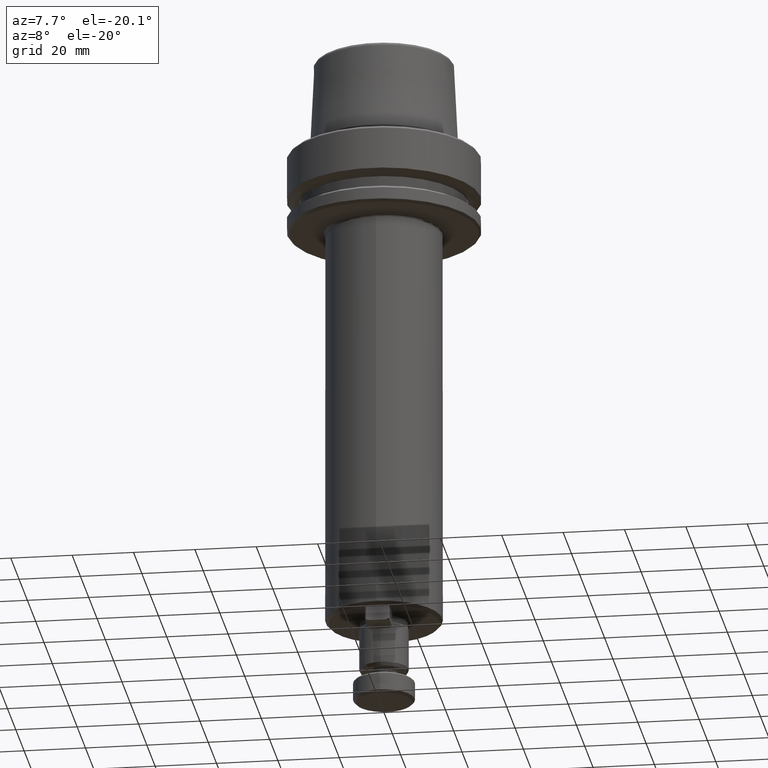
[diagram: clean part render]
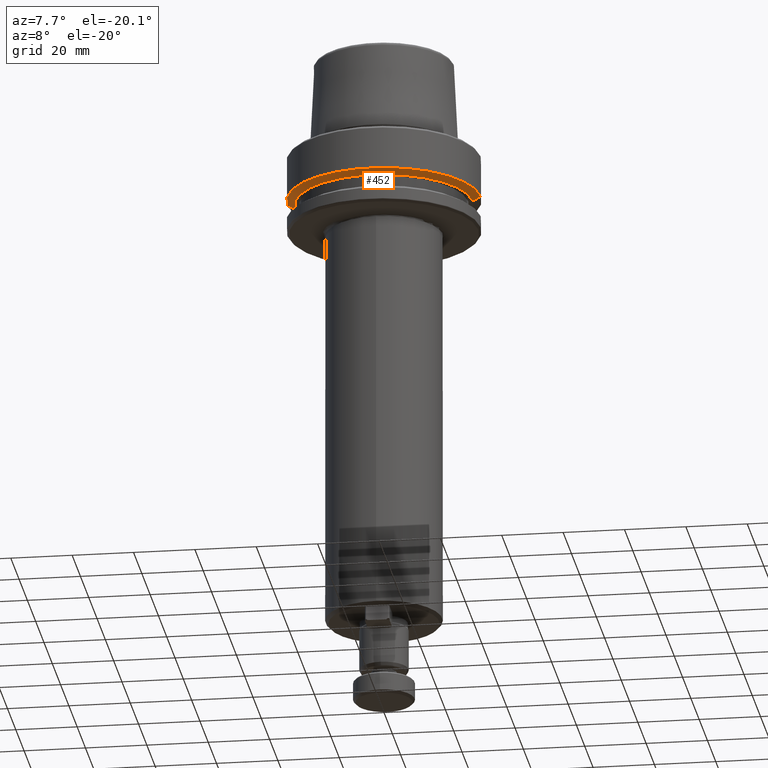
[diagram: same view with one face highlighted and labeled with its STEP entity id]
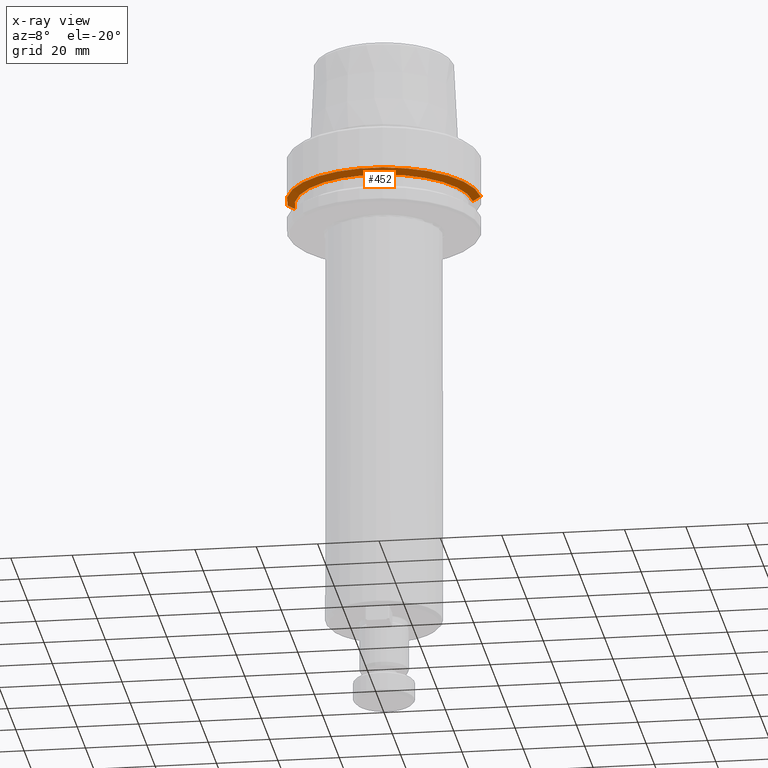
[diagram: x-ray of the same camera — body ghosted, the highlighted face saturated]
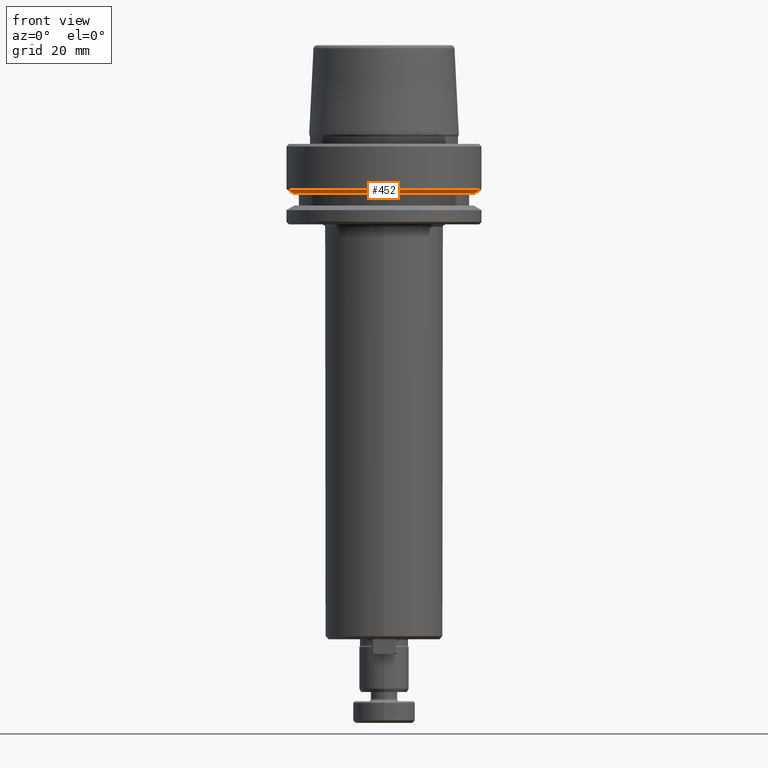
[diagram: same view with one face highlighted and labeled with its STEP entity id]
A machine part, auxiliary view. The second image highlights one B-rep face of the part: STEP entity #452.
The next image is the same camera in x-ray: the body ghosted, the highlighted face saturated — about 0% of this face is hidden behind the body in this view.
A second angle (front view) of the same face is appended — the face is thin or edge-on in the first view.
In plain terms, the highlighted conical surface has half-angle 60 deg.
Its self-contained STEP definition (entity closure, byte-faithful):
#70 = CARTESIAN_POINT ( 'NONE',  ( 0.0000000000000000000, 0.0000000000000000000, -16.10000000000001600 ) ) ;
#112 = VERTEX_POINT ( 'NONE', #1894 ) ;
#247 = CIRCLE ( 'NONE', #2272, 28.94089653438085100 ) ;
#311 = DIRECTION ( 'NONE',  ( 1.000000000000000000, 0.0000000000000000000, 0.0000000000000000000 ) ) ;
#452 = ADVANCED_FACE ( 'NONE', ( #1733 ), #2252, .T. ) ;
#523 = ORIENTED_EDGE ( 'NONE', *, *, #1267, .F. ) ;
#550 = EDGE_CURVE ( 'NONE', #2730, #637, #1508, .T. ) ;
#628 = VERTEX_POINT ( 'NONE', #2156 ) ;
#637 = VERTEX_POINT ( 'NONE', #1061 ) ;
#941 = VECTOR ( 'NONE', #1580, 1000.000000000000000 ) ;
#946 = ORIENTED_EDGE ( 'NONE', *, *, #2809, .T. ) ;
#1061 = CARTESIAN_POINT ( 'NONE',  ( 31.50000000000000000, 0.0000000000000000000, -14.62250092524070100 ) ) ;
#1080 = CARTESIAN_POINT ( 'NONE',  ( 0.0000000000000000000, 0.0000000000000000000, -16.10000000000001600 ) ) ;
#1214 = DIRECTION ( 'NONE',  ( -0.0000000000000000000, -0.0000000000000000000, 1.000000000000000000 ) ) ;
#1217 = DIRECTION ( 'NONE',  ( 0.8660254037844389300, 0.0000000000000000000, 0.4999999999999995000 ) ) ;
#1253 = ORIENTED_EDGE ( 'NONE', *, *, #1618, .T. ) ;
#1267 = EDGE_CURVE ( 'NONE', #112, #2730, #2656, .T. ) ;
#1427 = LINE ( 'NONE', #2515, #2570 ) ;
#1508 = CIRCLE ( 'NONE', #2650, 31.50000000000000000 ) ;
#1542 = EDGE_LOOP ( 'NONE', ( #523, #1253, #946, #1791 ) ) ;
#1580 = DIRECTION ( 'NONE',  ( -0.8660254037844389300, 1.060575238724907300E-016, 0.4999999999999995000 ) ) ;
#1593 = CARTESIAN_POINT ( 'NONE',  ( -28.94089653438085100, 3.544237630528423800E-015, -16.10000000000001600 ) ) ;
#1604 = DIRECTION ( 'NONE',  ( -0.0000000000000000000, -0.0000000000000000000, 1.000000000000000000 ) ) ;
#1618 = EDGE_CURVE ( 'NONE', #112, #628, #247, .T. ) ;
#1636 = DIRECTION ( 'NONE',  ( -0.0000000000000000000, -0.0000000000000000000, 1.000000000000000000 ) ) ;
#1666 = AXIS2_PLACEMENT_3D ( 'NONE', #1080, #1214, #1850 ) ;
#1733 = FACE_OUTER_BOUND ( 'NONE', #1542, .T. ) ;
#1791 = ORIENTED_EDGE ( 'NONE', *, *, #550, .F. ) ;
#1840 = DIRECTION ( 'NONE',  ( 1.000000000000000000, 0.0000000000000000000, 0.0000000000000000000 ) ) ;
#1850 = DIRECTION ( 'NONE',  ( 1.000000000000000000, 0.0000000000000000000, 0.0000000000000000000 ) ) ;
#1854 = CARTESIAN_POINT ( 'NONE',  ( 0.0000000000000000000, 0.0000000000000000000, -14.62250092524070100 ) ) ;
#1894 = CARTESIAN_POINT ( 'NONE',  ( -28.94089653438085100, 3.700937523921292900E-015, -16.10000000000001600 ) ) ;
#2156 = CARTESIAN_POINT ( 'NONE',  ( 28.94089653438085100, 0.0000000000000000000, -16.10000000000001600 ) ) ;
#2252 = CONICAL_SURFACE ( 'NONE', #1666, 28.94089653438085100, 1.047197551196598300 ) ;
#2272 = AXIS2_PLACEMENT_3D ( 'NONE', #70, #1636, #311 ) ;
#2295 = CARTESIAN_POINT ( 'NONE',  ( -31.50000000000000000, 3.857637417314162700E-015, -14.62250092524070100 ) ) ;
#2515 = CARTESIAN_POINT ( 'NONE',  ( 28.94089653438085100, 0.0000000000000000000, -16.10000000000001600 ) ) ;
#2570 = VECTOR ( 'NONE', #1217, 1000.000000000000000 ) ;
#2650 = AXIS2_PLACEMENT_3D ( 'NONE', #1854, #1604, #1840 ) ;
#2656 = LINE ( 'NONE', #1593, #941 ) ;
#2730 = VERTEX_POINT ( 'NONE', #2295 ) ;
#2809 = EDGE_CURVE ( 'NONE', #628, #637, #1427, .T. ) ;